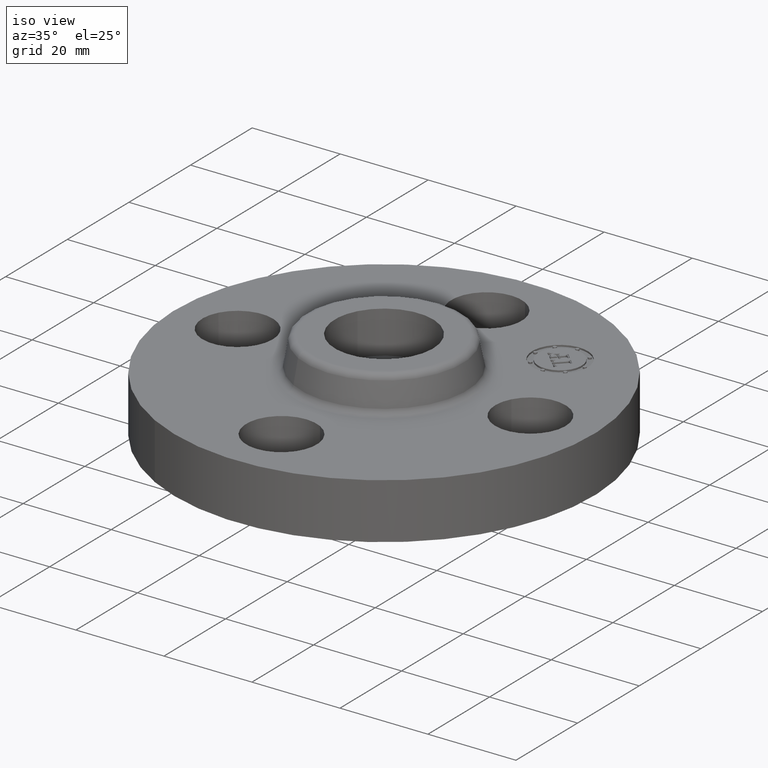
[diagram: clean part render]
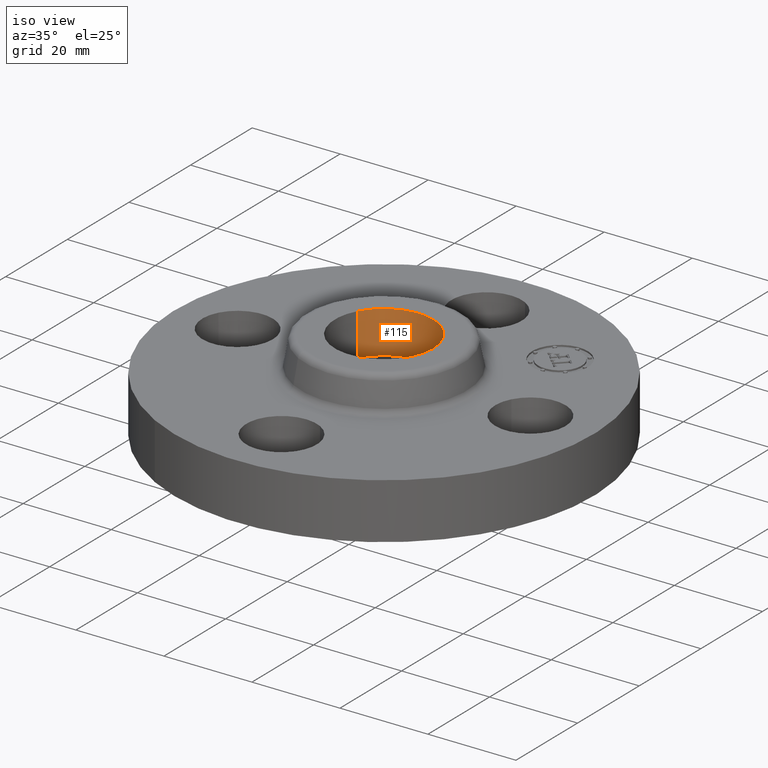
[diagram: same view with one face highlighted and labeled with its STEP entity id]
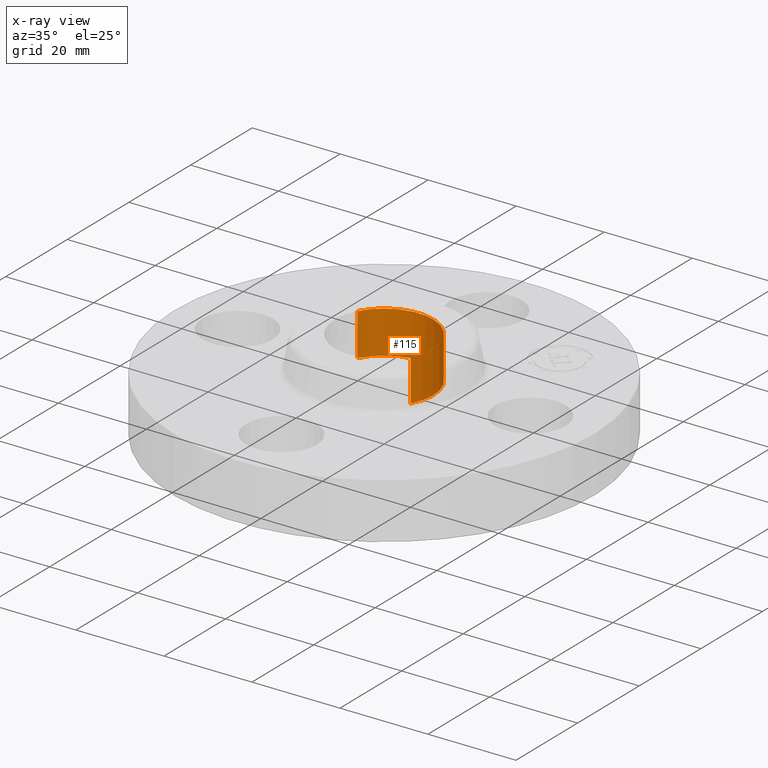
[diagram: x-ray of the same camera — body ghosted, the highlighted face saturated]
A machine part, iso view. The second image highlights one B-rep face of the part: STEP entity #115.
The next image is the same camera in x-ray: the body ghosted, the highlighted face saturated — about 0% of this face is hidden behind the body in this view.
In plain terms, the highlighted cylindrical surface (partial cylindrical patch) has radius 11.176 mm, axis along (0, 0, -1).
Its self-contained STEP definition (entity closure, byte-faithful):
#42=AXIS2_PLACEMENT_3D('Circle Axis2P3D',#40,#41,$) ;
#88=AXIS2_PLACEMENT_3D('Cylinder Axis2P3D',#85,#86,#87) ;
#92=AXIS2_PLACEMENT_3D('Circle Axis2P3D',#90,#91,$) ;
#40=CARTESIAN_POINT('Axis2P3D Location',(1.74838271595E-017,-1.04902962957E-016,0.430000000002)) ;
#44=CARTESIAN_POINT('Vertex',(-0.386136327247,0.210947237,0.430000000002)) ;
#46=CARTESIAN_POINT('Vertex',(0.386136327247,-0.210947237,0.430000000002)) ;
#85=CARTESIAN_POINT('Axis2P3D Location',(0.,-6.99353086378E-017,0.806062992129)) ;
#90=CARTESIAN_POINT('Axis2P3D Location',(0.,-6.99353086378E-017,0.809999999988)) ;
#94=CARTESIAN_POINT('Vertex',(-0.386136327247,0.210947236962,0.810000000003)) ;
#96=CARTESIAN_POINT('Vertex',(0.386136327247,-0.210947236964,0.810000000003)) ;
#99=CARTESIAN_POINT('Line Origine',(-0.386136327233,0.210947236987,0.620000000011)) ;
#104=CARTESIAN_POINT('Line Origine',(0.386136327233,-0.210947236987,0.620000000011)) ;
#41=DIRECTION('Axis2P3D Direction',(0.,0.,-0.0393700787402)) ;
#86=DIRECTION('Axis2P3D Direction',(0.,0.,-0.0393700787402)) ;
#87=DIRECTION('Axis2P3D XDirection',(-0.0345504945626,0.0188750212049,-0.)) ;
#91=DIRECTION('Axis2P3D Direction',(0.,0.,-0.0393700787402)) ;
#100=DIRECTION('Vector Direction',(0.,0.,-0.0393700787402)) ;
#105=DIRECTION('Vector Direction',(0.,0.,-0.0393700787402)) ;
#101=VECTOR('Line Direction',#100,0.0393700787402) ;
#106=VECTOR('Line Direction',#105,0.0393700787402) ;
#110=ORIENTED_EDGE('',*,*,#98,.F.) ;
#111=ORIENTED_EDGE('',*,*,#103,.F.) ;
#112=ORIENTED_EDGE('',*,*,#48,.T.) ;
#113=ORIENTED_EDGE('',*,*,#108,.T.) ;
#115=ADVANCED_FACE('PartBody',(#114),#89,.F.) ;
#43=CIRCLE('generated circle',#42,0.44000000002) ;
#93=CIRCLE('generated circle',#92,0.440000000002) ;
#89=CYLINDRICAL_SURFACE('generated cylinder',#88,0.440000000002) ;
#48=EDGE_CURVE('',#45,#47,#43,.T.) ;
#98=EDGE_CURVE('',#95,#97,#93,.T.) ;
#103=EDGE_CURVE('',#45,#95,#102,.F.) ;
#108=EDGE_CURVE('',#47,#97,#107,.F.) ;
#109=EDGE_LOOP('',(#110,#111,#112,#113)) ;
#114=FACE_OUTER_BOUND('',#109,.T.) ;
#102=LINE('Line',#99,#101) ;
#107=LINE('Line',#104,#106) ;
#45=VERTEX_POINT('',#44) ;
#47=VERTEX_POINT('',#46) ;
#95=VERTEX_POINT('',#94) ;
#97=VERTEX_POINT('',#96) ;